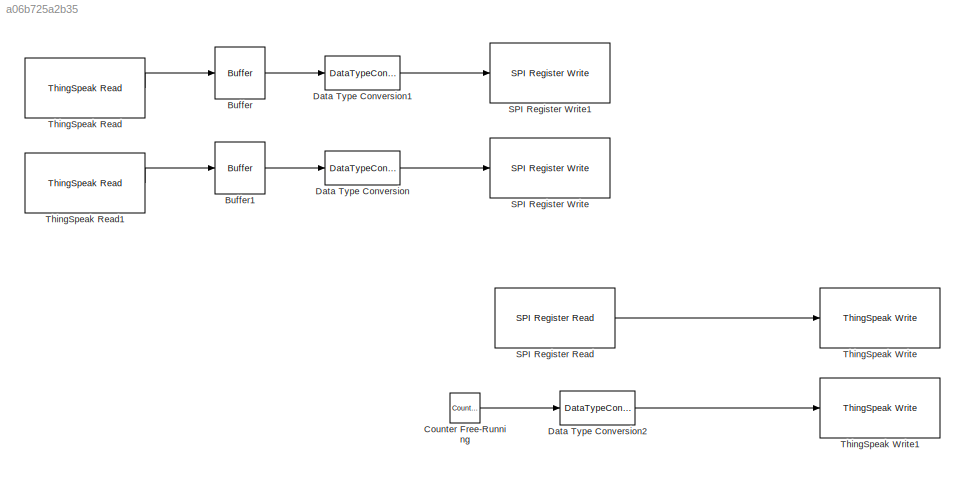
MODEL slx_a06b725a2b35
KIND model
CONFIG AbsTol = auto
CONFIG EnableMultiTasking = off
CONFIG FixedStep = auto
CONFIG MaxStep = auto
CONFIG MinStep = auto
CONFIG RelTol = 1e-3
CONFIG SampleTimeConstraint = Unconstrained
CONFIG SolverName = VariableStepAuto
CONFIG StartTime = 0.0
CONFIG StopTime = 10.0
BLOCK [Buffer] Buffer
  N = 128
  OutputFrames = off
BLOCK [Buffer] Buffer1
  N = 128
  OutputFrames = off
BLOCK [Reference] Counter Free-Running  REF=simulink/Sources/Counter
Free-Running
  SourceBlock = simulink/Sources/Counter\nFree-Running
  SourceType = Counter Free-Running
BLOCK [DataTypeConversion] Data Type Conversion
  OutDataTypeStr = uint16
  RndMeth = Floor
BLOCK [DataTypeConversion] Data Type Conversion1
  OutDataTypeStr = uint16
  RndMeth = Floor
BLOCK [DataTypeConversion] Data Type Conversion2
  OutDataTypeStr = uint16
  RndMeth = Floor
BLOCK [Reference] SPI Register Read  REF=raspberrypiCommlib/SPI Register Read
  SourceBlock = raspberrypiCommlib/SPI Register Read
  SourceType = codertarget.raspi.internal.SPIRegisterRead
BLOCK [Reference] SPI Register Write  REF=raspberrypiCommlib/SPI Register Write
  AttributesFormatString = %<BusSpeed>
  SourceBlock = raspberrypiCommlib/SPI Register Write
  SourceType = codertarget.raspi.internal.SPIRegisterWrite
BLOCK [Reference] SPI Register Write1  REF=raspberrypiCommlib/SPI Register Write
  AttributesFormatString = %<BusSpeed>
  SourceBlock = raspberrypiCommlib/SPI Register Write
  SourceType = codertarget.raspi.internal.SPIRegisterWrite
BLOCK [Reference] ThingSpeak Read  REF=raspberrypiIOTlib/ThingSpeak Read
  SourceBlock = raspberrypiIOTlib/ThingSpeak Read
  SourceType = codertarget.raspi.internal.RaspiThingSpeakRead
BLOCK [Reference] ThingSpeak Read1  REF=raspberrypiIOTlib/ThingSpeak Read
  SourceBlock = raspberrypiIOTlib/ThingSpeak Read
  SourceType = codertarget.raspi.internal.RaspiThingSpeakRead
BLOCK [Reference] ThingSpeak Write  REF=raspberrypiIOTlib/ThingSpeak Write
  SourceBlock = raspberrypiIOTlib/ThingSpeak Write
  SourceType = codertarget.linux.blocks.ThingSpeakWrite
BLOCK [Reference] ThingSpeak Write1  REF=raspberrypiIOTlib/ThingSpeak Write
  SourceBlock = raspberrypiIOTlib/ThingSpeak Write
  SourceType = codertarget.linux.blocks.ThingSpeakWrite
LINE Buffer1:1 -> Data Type Conversion:1
LINE Buffer:1 -> Data Type Conversion1:1
LINE Counter Free-Running:1 -> Data Type Conversion2:1
LINE Data Type Conversion1:1 -> SPI Register Write1:1
LINE Data Type Conversion2:1 -> ThingSpeak Write1:1
LINE Data Type Conversion:1 -> SPI Register Write:1
LINE SPI Register Read:1 -> ThingSpeak Write:1
LINE ThingSpeak Read1:1 -> Buffer1:1
LINE ThingSpeak Read:1 -> Buffer:1
